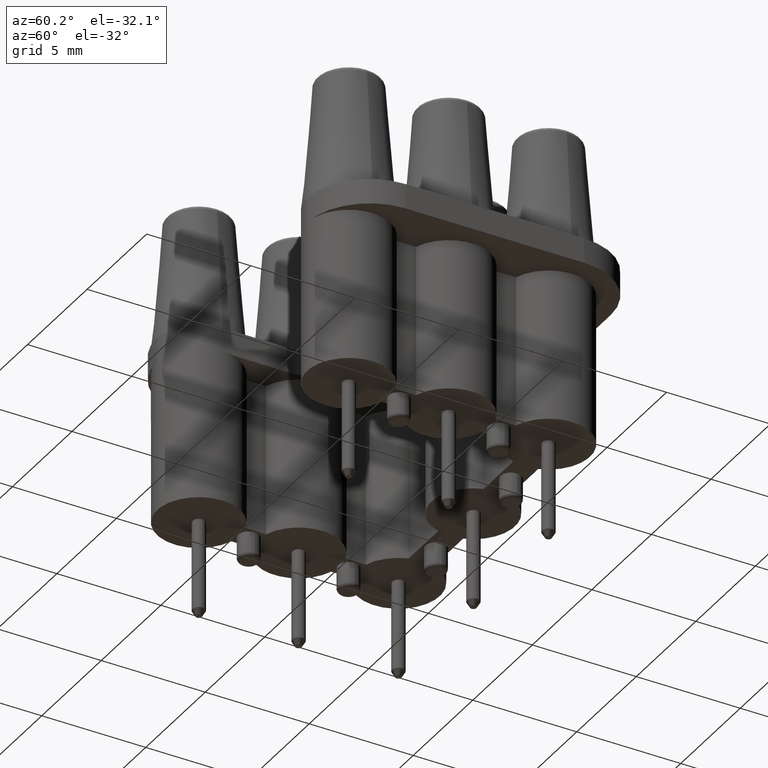
[diagram: clean part render]
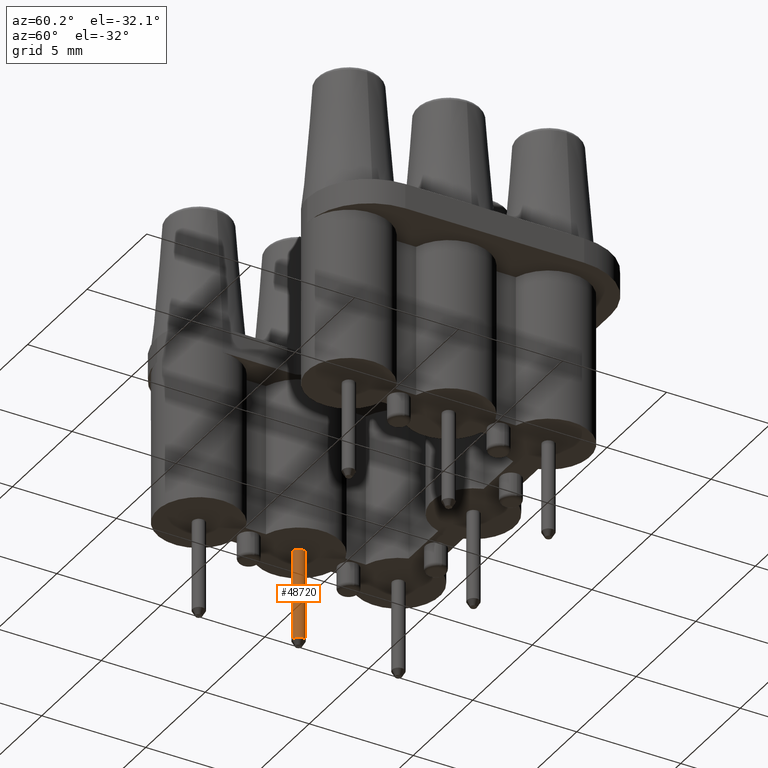
[diagram: same view with one face highlighted and labeled with its STEP entity id]
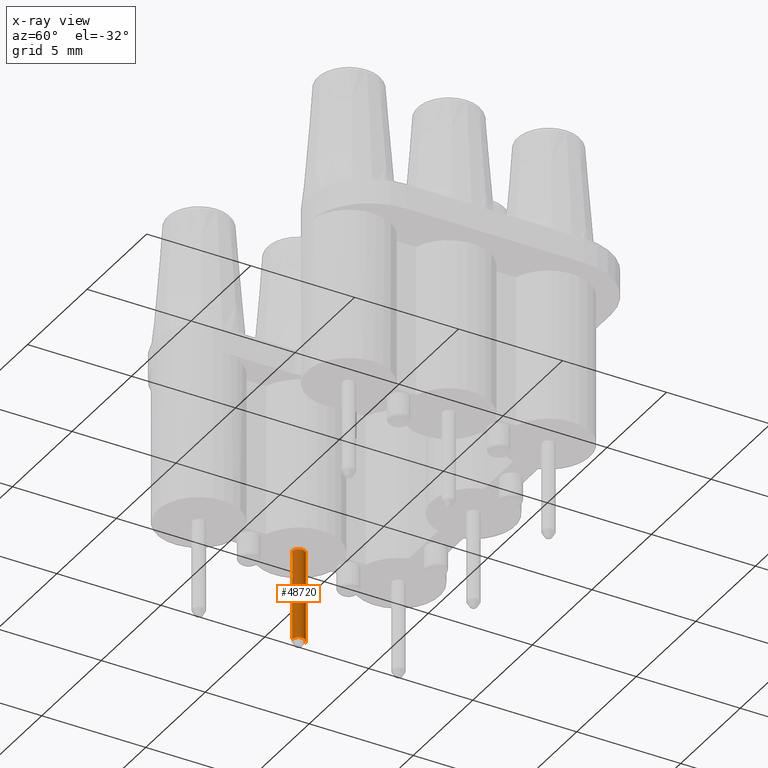
[diagram: x-ray of the same camera — body ghosted, the highlighted face saturated]
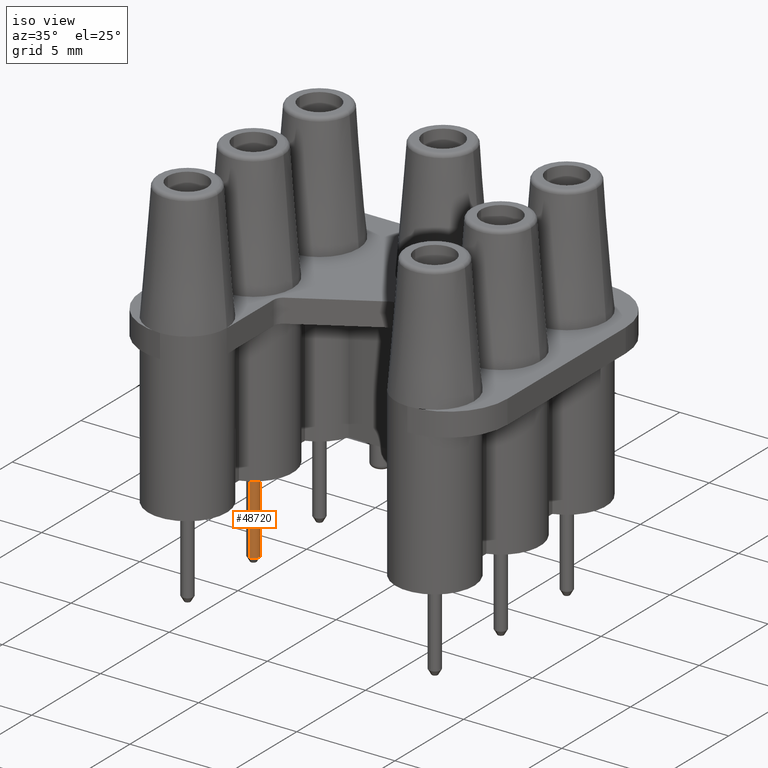
[diagram: same view with one face highlighted and labeled with its STEP entity id]
A machine part, auxiliary view. The second image highlights one B-rep face of the part: STEP entity #48720.
The next image is the same camera in x-ray: the body ghosted, the highlighted face saturated — about 0% of this face is hidden behind the body in this view.
A second angle (iso view) of the same face is appended — the face is thin or edge-on in the first view.
In plain terms, the highlighted cylindrical surface (edge-blend (fillet) strip) has radius 0.3 mm, axis along (0, 0, -1).
Its self-contained STEP definition (entity closure, byte-faithful):
#35040=CARTESIAN_POINT('',(50.3129610115911,53.8,8.5));
#35050=DIRECTION('',(0.,0.,1.));
#35060=DIRECTION('',(0.,-1.,0.));
#35070=AXIS2_PLACEMENT_3D('',#35040,#35050,#35060);
#35080=CIRCLE('',#35070,0.3);
#35090=CARTESIAN_POINT('',(50.3129610115911,53.5,8.5));
#35100=VERTEX_POINT('',#35090);
#35110=CARTESIAN_POINT('',(50.3129610115911,54.1,8.5));
#35120=VERTEX_POINT('',#35110);
#35150=EDGE_CURVE('',#35120,#35100,#35080,.T.);
#48410=CARTESIAN_POINT('',(50.3129610115911,53.8,8.52009612409068));
#48420=DIRECTION('',(0.,0.,1.));
#48430=DIRECTION('',(0.,-1.,0.));
#48440=AXIS2_PLACEMENT_3D('',#48410,#48420,#48430);
#48450=CYLINDRICAL_SURFACE('',#48440,0.3);
#48460=CARTESIAN_POINT('',(50.3129610115911,54.1,8.52009612409068));
#48470=DIRECTION('',(0.,0.,1.));
#48480=VECTOR('',#48470,1.);
#48490=LINE('',#48460,#48480);
#48500=CARTESIAN_POINT('',(50.3129610115911,54.1,12.840192313523));
#48510=VERTEX_POINT('',#48500);
#48520=EDGE_CURVE('',#35120,#48510,#48490,.T.);
#48530=ORIENTED_EDGE('',*,*,#48520,.F.);
#48540=CARTESIAN_POINT('',(50.3129610115911,53.8,12.840192313523));
#48550=DIRECTION('',(0.,0.,1.));
#48560=DIRECTION('',(0.,-1.,0.));
#48570=AXIS2_PLACEMENT_3D('',#48540,#48550,#48560);
#48580=CIRCLE('',#48570,0.3);
#48590=CARTESIAN_POINT('',(50.3129610115911,53.5,12.840192313523));
#48600=VERTEX_POINT('',#48590);
#48610=EDGE_CURVE('',#48510,#48600,#48580,.T.);
#48620=ORIENTED_EDGE('',*,*,#48610,.F.);
#48630=CARTESIAN_POINT('',(50.3129610115911,53.5,8.52009612409068));
#48640=DIRECTION('',(0.,0.,1.));
#48650=VECTOR('',#48640,1.);
#48660=LINE('',#48630,#48650);
#48670=EDGE_CURVE('',#35100,#48600,#48660,.T.);
#48680=ORIENTED_EDGE('',*,*,#48670,.T.);
#48690=ORIENTED_EDGE('',*,*,#35150,.T.);
#48700=EDGE_LOOP('',(#48690,#48680,#48620,#48530));
#48710=FACE_OUTER_BOUND('',#48700,.T.);
#48720=ADVANCED_FACE('',(#48710),#48450,.T.);